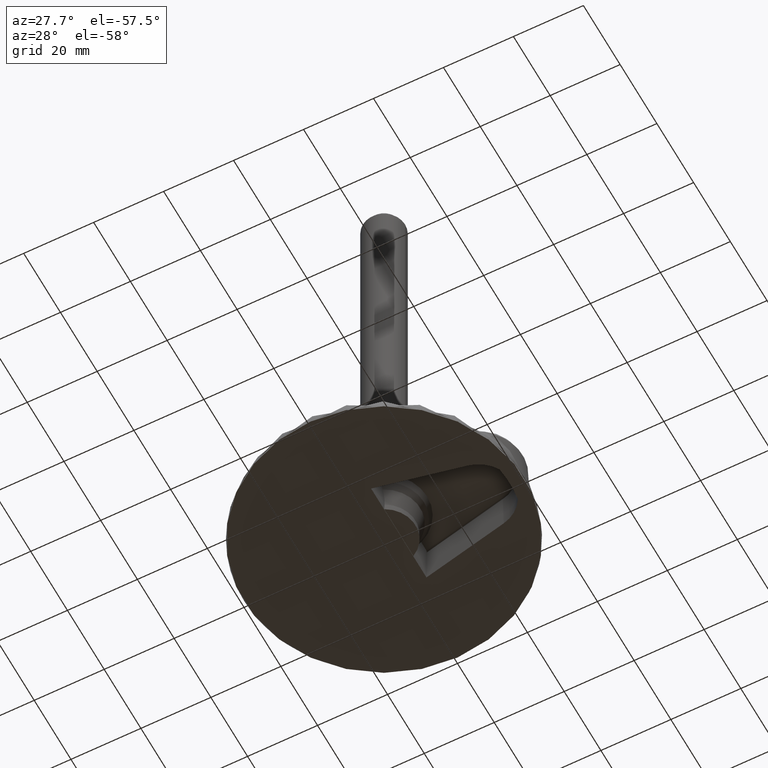
[diagram: clean part render]
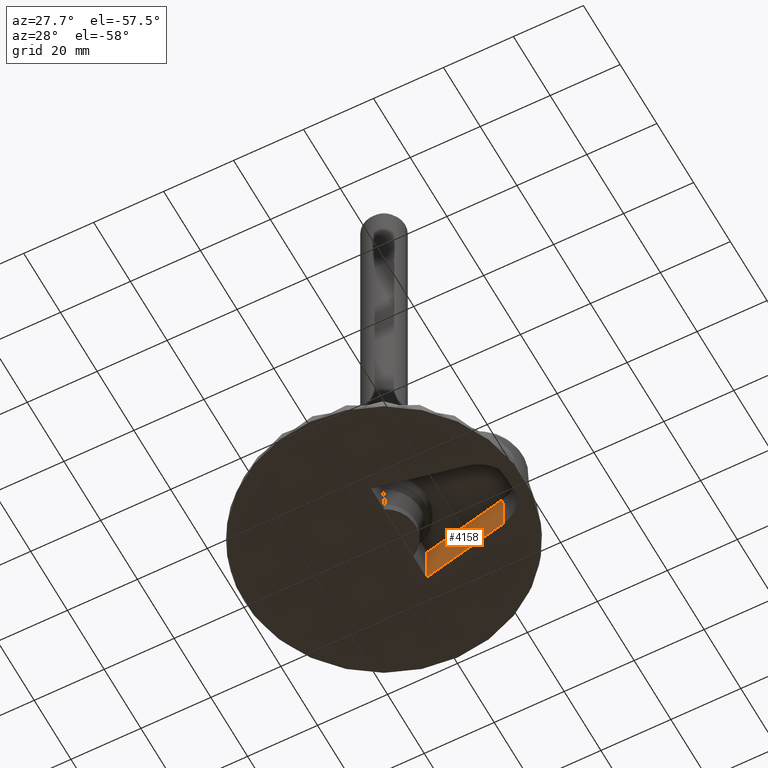
[diagram: same view with one face highlighted and labeled with its STEP entity id]
A machine part, auxiliary view. The second image highlights one B-rep face of the part: STEP entity #4158.
In plain terms, the highlighted planar face has unit normal (0.2078, 0.9776, 0.0349).
Its self-contained STEP definition (entity closure, byte-faithful):
#1252=CARTESIAN_POINT('',(4.228600978899999,15.068558385653347,0.0));
#1253=VERTEX_POINT('',#1252);
#1296=CARTESIAN_POINT('',(29.080143893215109,9.786199871624419,0.0));
#1297=VERTEX_POINT('',#1296);
#1305=CARTESIAN_POINT('',(16.744890451245038,12.408138930561559,0.0));
#1306=VERTEX_POINT('',#1305);
#1307=CARTESIAN_POINT('',(29.080143881486308,9.786199816445748,0.000001615414558));
#1308=DIRECTION('',(-0.978147599804018,0.207911695192026,-0.000000128097397));
#1309=VECTOR('',#1308,12.610830341671088);
#1310=LINE('',#1307,#1309);
#1311=EDGE_CURVE('',#1297,#1306,#1310,.T.);
#1313=CARTESIAN_POINT('',(4.228600978899999,15.068558385653347,0.0));
#1314=DIRECTION('',(0.978147600734069,-0.207911690816520,0.0));
#1315=VECTOR('',#1314,12.795910824656687);
#1316=LINE('',#1313,#1315);
#1317=EDGE_CURVE('',#1253,#1306,#1316,.T.);
#3987=CARTESIAN_POINT('',(4.607402271135490,14.600777746980549,10.847449748351250));
#3988=VERTEX_POINT('',#3987);
#3989=CARTESIAN_POINT('',(4.607402271135491,14.600777746980574,10.847449748351252));
#3990=DIRECTION('',(-0.034867131032224,0.043057320968170,-0.998463995487381));
#3991=VECTOR('',#3990,10.864137111980964);
#3992=LINE('',#3989,#3991);
#3993=EDGE_CURVE('',#3988,#1253,#3992,.T.);
#4113=CARTESIAN_POINT('',(29.001386676062936,9.415676296469311,10.847449748351250));
#4114=VERTEX_POINT('',#4113);
#4115=CARTESIAN_POINT('',(29.001386676062967,9.415676296469314,10.847449748351250));
#4116=DIRECTION('',(0.007256013368060,0.034136858966377,-0.999390827019096));
#4117=VECTOR('',#4116,10.854061749502113);
#4118=LINE('',#4115,#4117);
#4119=EDGE_CURVE('',#4114,#1297,#4118,.T.);
#4141=CARTESIAN_POINT('',(30.326658899788494,9.540608124680725,-0.542372487417564));
#4142=DIRECTION('',(0.207785036632061,0.977551739644365,0.034899496702501));
#4143=DIRECTION('',(-0.978147600734069,0.207911690816521,-1.159557E-017));
#4144=AXIS2_PLACEMENT_3D('',#4141,#4142,#4143);
#4145=PLANE('',#4144);
#4146=ORIENTED_EDGE('',*,*,#3993,.T.);
#4147=ORIENTED_EDGE('',*,*,#1317,.T.);
#4148=ORIENTED_EDGE('',*,*,#1311,.F.);
#4149=ORIENTED_EDGE('',*,*,#4119,.F.);
#4150=CARTESIAN_POINT('',(4.607402271135502,14.600777746980601,10.847449748351250));
#4151=DIRECTION('',(0.978147600734068,-0.207911690816523,0.0));
#4152=VECTOR('',#4151,24.938960527655063);
#4153=LINE('',#4150,#4152);
#4154=EDGE_CURVE('',#3988,#4114,#4153,.T.);
#4155=ORIENTED_EDGE('',*,*,#4154,.F.);
#4156=EDGE_LOOP('',(#4146,#4147,#4148,#4149,#4155));
#4157=FACE_OUTER_BOUND('',#4156,.T.);
#4158=ADVANCED_FACE('',(#4157),#4145,.F.);